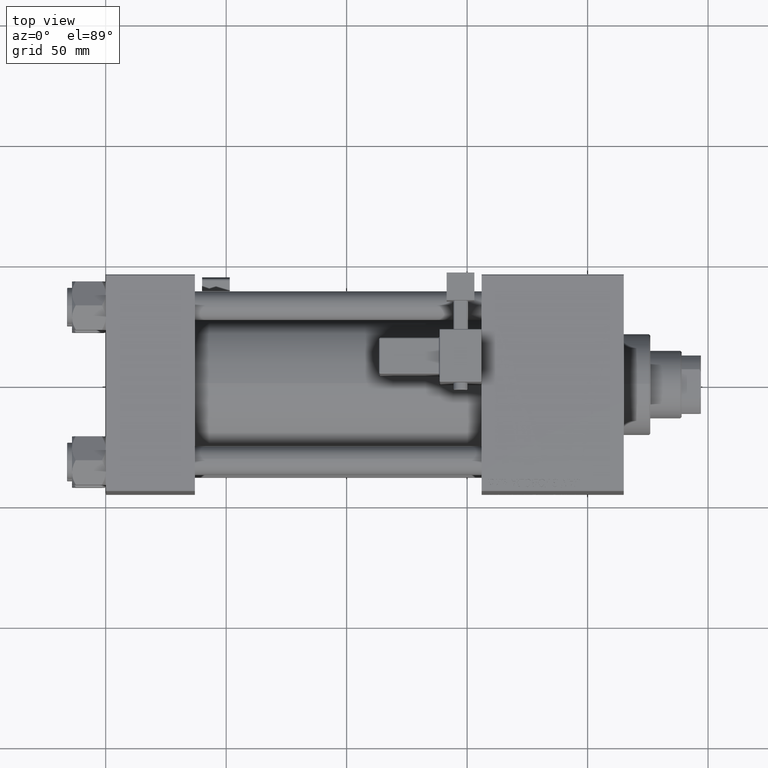
[diagram: clean part render]
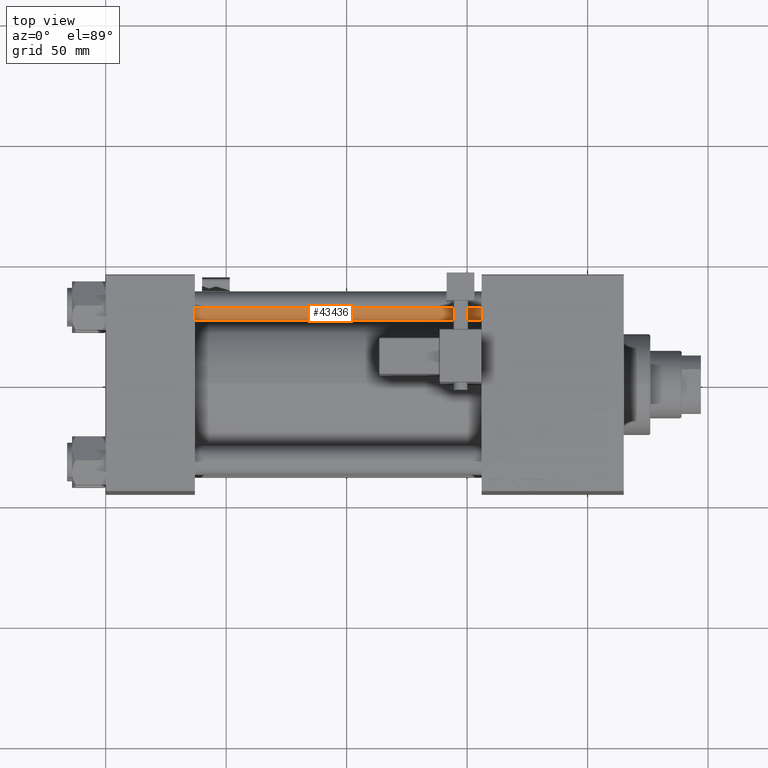
[diagram: same view with one face highlighted and labeled with its STEP entity id]
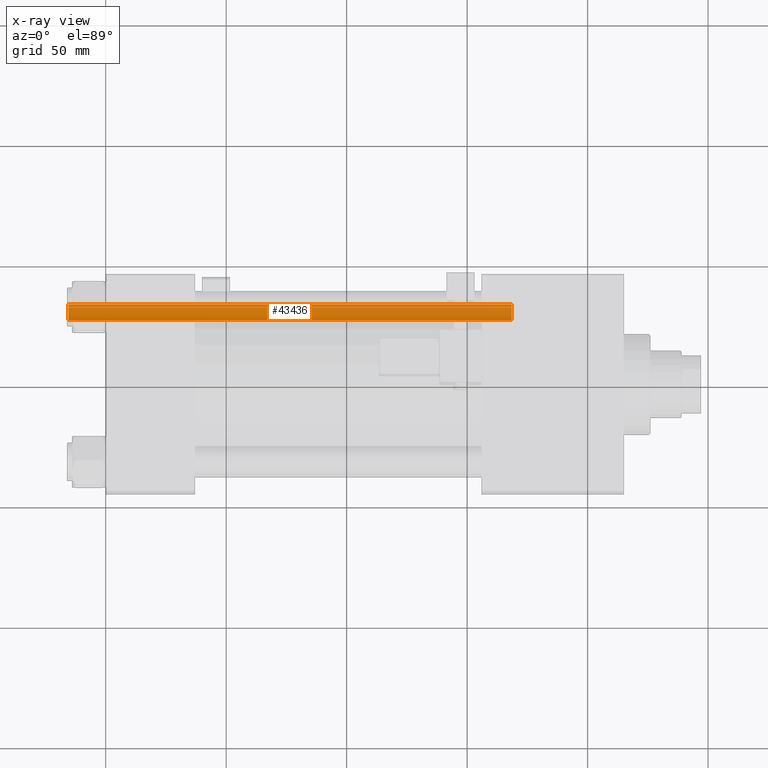
[diagram: x-ray of the same camera — body ghosted, the highlighted face saturated]
A machine part, top view. The second image highlights one B-rep face of the part: STEP entity #43436.
The next image is the same camera in x-ray: the body ghosted, the highlighted face saturated — about 0% of this face is hidden behind the body in this view.
In plain terms, the highlighted cylindrical surface (edge-blend (fillet) strip) has radius 6 mm, axis along (-1, 0, 0).
Its self-contained STEP definition (entity closure, byte-faithful):
#2311 = CARTESIAN_POINT ( 'NONE',  ( 6.000000000000000888, 7.347880794884120722E-16, 184.5000000000000000 ) ) ;
#2505 = AXIS2_PLACEMENT_3D ( 'NONE', #45267, #13201, #8955 ) ;
#3495 = EDGE_LOOP ( 'NONE', ( #44177, #25931, #28096, #32525 ) ) ;
#5031 = CARTESIAN_POINT ( 'NONE',  ( 0.000000000000000000, 0.000000000000000000, 184.5000000000000000 ) ) ;
#5228 = CARTESIAN_POINT ( 'NONE',  ( 6.000000000000000888, 7.347880794884120722E-16, 0.5000000000000281997 ) ) ;
#5950 = CARTESIAN_POINT ( 'NONE',  ( -6.000000000000000888, 0.000000000000000000, 0.5000000000000281997 ) ) ;
#6296 = DIRECTION ( 'NONE',  ( -0.000000000000000000, -0.000000000000000000, -1.000000000000000000 ) ) ;
#8955 = DIRECTION ( 'NONE',  ( -1.000000000000000000, 0.000000000000000000, 0.000000000000000000 ) ) ;
#9008 = DIRECTION ( 'NONE',  ( 0.000000000000000000, 0.000000000000000000, -1.000000000000000000 ) ) ;
#9875 = EDGE_CURVE ( 'NONE', #40016, #18573, #34541, .T. ) ;
#9911 = DIRECTION ( 'NONE',  ( -0.000000000000000000, -0.000000000000000000, -1.000000000000000000 ) ) ;
#12264 = VECTOR ( 'NONE', #9911, 1000.000000000000000 ) ;
#12305 = EDGE_CURVE ( 'NONE', #48878, #40016, #31828, .T. ) ;
#13099 = CARTESIAN_POINT ( 'NONE',  ( 0.000000000000000000, 0.000000000000000000, 0.5000000000000281997 ) ) ;
#13201 = DIRECTION ( 'NONE',  ( -0.000000000000000000, -0.000000000000000000, -1.000000000000000000 ) ) ;
#14268 = LINE ( 'NONE', #25927, #41997 ) ;
#15811 = CIRCLE ( 'NONE', #23443, 6.000000000000000888 ) ;
#18573 = VERTEX_POINT ( 'NONE', #5950 ) ;
#20943 = DIRECTION ( 'NONE',  ( 1.000000000000000000, 0.000000000000000000, 0.000000000000000000 ) ) ;
#21051 = DIRECTION ( 'NONE',  ( 1.000000000000000000, 0.000000000000000000, 0.000000000000000000 ) ) ;
#23443 = AXIS2_PLACEMENT_3D ( 'NONE', #13099, #29271, #21051 ) ;
#25927 = CARTESIAN_POINT ( 'NONE',  ( 6.000000000000000888, 7.347880794884120722E-16, 185.0000000000000000 ) ) ;
#25931 = ORIENTED_EDGE ( 'NONE', *, *, #12305, .T. ) ;
#28096 = ORIENTED_EDGE ( 'NONE', *, *, #9875, .T. ) ;
#29271 = DIRECTION ( 'NONE',  ( -0.000000000000000000, -0.000000000000000000, 1.000000000000000000 ) ) ;
#31343 = EDGE_CURVE ( 'NONE', #48878, #47246, #14268, .T. ) ;
#31828 = CIRCLE ( 'NONE', #45369, 6.000000000000000888 ) ;
#32525 = ORIENTED_EDGE ( 'NONE', *, *, #32735, .T. ) ;
#32735 = EDGE_CURVE ( 'NONE', #18573, #47246, #15811, .T. ) ;
#34040 = CARTESIAN_POINT ( 'NONE',  ( -6.000000000000000888, 0.000000000000000000, 184.5000000000000000 ) ) ;
#34541 = LINE ( 'NONE', #50195, #12264 ) ;
#40016 = VERTEX_POINT ( 'NONE', #34040 ) ;
#40496 = CYLINDRICAL_SURFACE ( 'NONE', #2505, 6.000000000000000888 ) ;
#40757 = FACE_OUTER_BOUND ( 'NONE', #3495, .T. ) ;
#41997 = VECTOR ( 'NONE', #6296, 1000.000000000000000 ) ;
#43436 = ADVANCED_FACE ( 'NONE', ( #40757 ), #40496, .T. ) ;
#44177 = ORIENTED_EDGE ( 'NONE', *, *, #31343, .F. ) ;
#45267 = CARTESIAN_POINT ( 'NONE',  ( 0.000000000000000000, 0.000000000000000000, 185.0000000000000000 ) ) ;
#45369 = AXIS2_PLACEMENT_3D ( 'NONE', #5031, #9008, #20943 ) ;
#47246 = VERTEX_POINT ( 'NONE', #5228 ) ;
#48878 = VERTEX_POINT ( 'NONE', #2311 ) ;
#50195 = CARTESIAN_POINT ( 'NONE',  ( -6.000000000000000888, 0.000000000000000000, 185.0000000000000000 ) ) ;